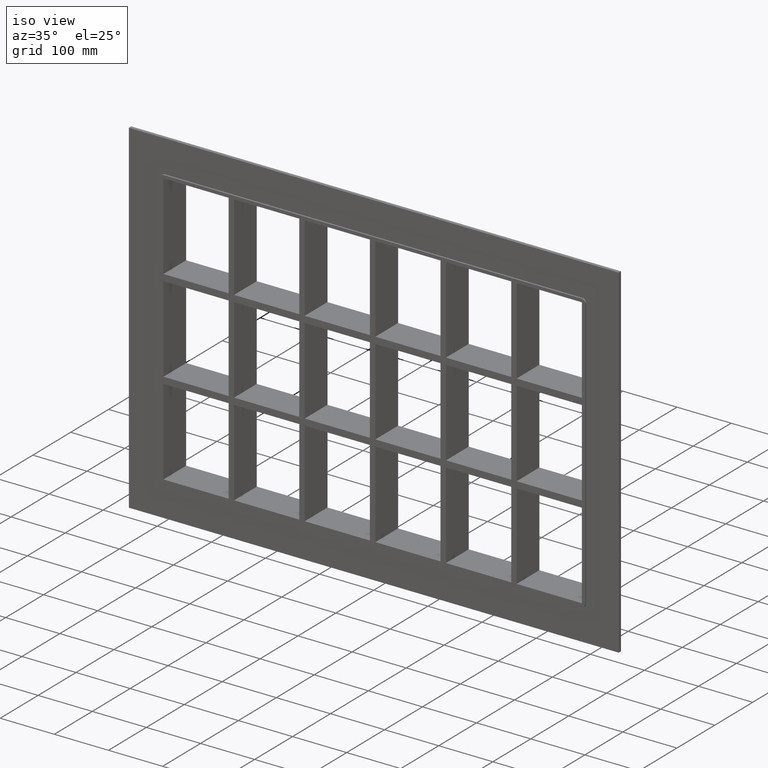
[diagram: clean part render]
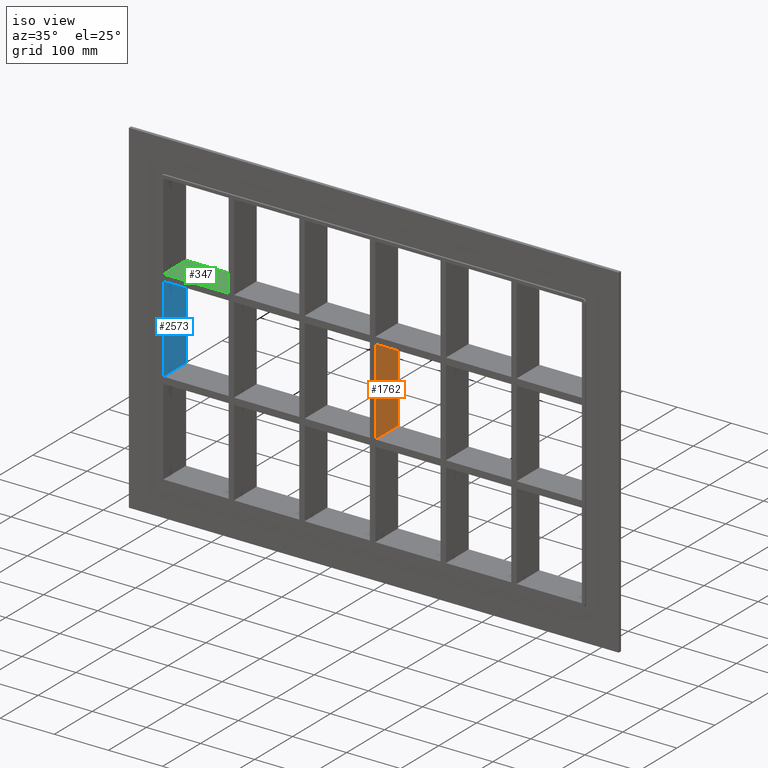
[diagram: same view with three faces highlighted in distinct colors, each labeled with its STEP entity id]
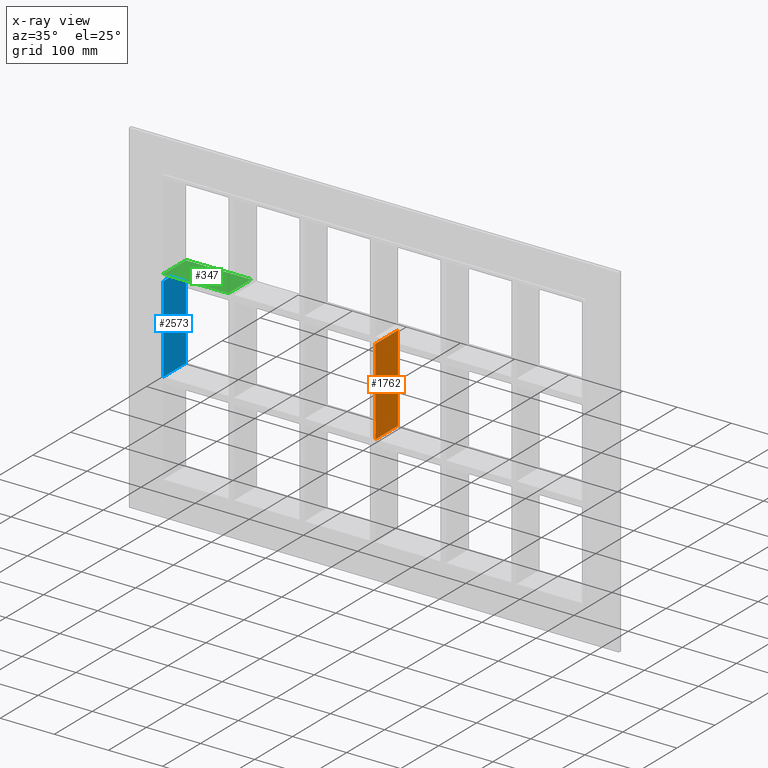
[diagram: x-ray of the same camera — body ghosted, the three highlighted faces saturated]
A machine part, iso view with three faces highlighted in distinct colors.
The next image is the same camera in x-ray (body ghosted, the three faces saturated) — at least one of them is partly hidden behind the body in this view.
Their STEP definitions:

[orange] entity #1762 — the highlighted planar face has unit normal (1, 0, 0).
#203=CARTESIAN_POINT('',(4.999999999996376,-3.0,79.749999999990663));
#204=VERTEX_POINT('',#203);
#211=CARTESIAN_POINT('',(4.999999999996376,57.0,79.749999999990663));
#212=VERTEX_POINT('',#211);
#213=CARTESIAN_POINT('',(4.999999999996376,57.0,79.749999999990649));
#214=DIRECTION('',(0.0,-1.0,0.0));
#215=VECTOR('',#214,60.0);
#216=LINE('',#213,#215);
#217=EDGE_CURVE('',#212,#204,#216,.T.);
#1174=CARTESIAN_POINT('',(4.999999999996376,57.0,-79.749999999999943));
#1175=VERTEX_POINT('',#1174);
#1176=CARTESIAN_POINT('',(4.999999999996376,57.0,79.749999999990678));
#1177=DIRECTION('',(0.0,0.0,-1.0));
#1178=VECTOR('',#1177,159.49999999999062);
#1179=LINE('',#1176,#1178);
#1180=EDGE_CURVE('',#212,#1175,#1179,.T.);
#1739=CARTESIAN_POINT('',(4.999999999996376,-3.0,251.25));
#1740=DIRECTION('',(1.0,0.0,0.0));
#1741=DIRECTION('',(0.0,0.0,-1.0));
#1742=AXIS2_PLACEMENT_3D('',#1739,#1740,#1741);
#1743=PLANE('',#1742);
#1744=ORIENTED_EDGE('',*,*,#217,.T.);
#1745=CARTESIAN_POINT('',(4.999999999996376,-3.0,-79.749999999999943));
#1746=VERTEX_POINT('',#1745);
#1747=CARTESIAN_POINT('',(4.999999999996376,-3.0,79.749999999990678));
#1748=DIRECTION('',(0.0,0.0,-1.0));
#1749=VECTOR('',#1748,159.49999999999062);
#1750=LINE('',#1747,#1749);
#1751=EDGE_CURVE('',#204,#1746,#1750,.T.);
#1752=ORIENTED_EDGE('',*,*,#1751,.T.);
#1753=CARTESIAN_POINT('',(4.999999999996376,57.0,-79.749999999999943));
#1754=DIRECTION('',(0.0,-1.0,0.0));
#1755=VECTOR('',#1754,60.0);
#1756=LINE('',#1753,#1755);
#1757=EDGE_CURVE('',#1175,#1746,#1756,.T.);
#1758=ORIENTED_EDGE('',*,*,#1757,.F.);
#1759=ORIENTED_EDGE('',*,*,#1180,.F.);
#1760=EDGE_LOOP('',(#1744,#1752,#1758,#1759));
#1761=FACE_OUTER_BOUND('',#1760,.T.);
#1762=ADVANCED_FACE('',(#1761),#1743,.T.);

[blue] entity #2573 — the highlighted planar face has unit normal (-1, 0, 0).
#83=CARTESIAN_POINT('',(-386.49999999999977,-3.0,79.749999999990536));
#84=VERTEX_POINT('',#83);
#91=CARTESIAN_POINT('',(-386.49999999999977,57.0,79.749999999990536));
#92=VERTEX_POINT('',#91);
#93=CARTESIAN_POINT('',(-386.5,57.000000000000007,79.749999999990507));
#94=DIRECTION('',(0.0,-1.0,0.0));
#95=VECTOR('',#94,60.000000000000007);
#96=LINE('',#93,#95);
#97=EDGE_CURVE('',#92,#84,#96,.T.);
#1057=CARTESIAN_POINT('',(-386.49999999999977,57.0,-79.749999999999943));
#1058=VERTEX_POINT('',#1057);
#1059=CARTESIAN_POINT('',(-386.5,57.0,79.749999999990536));
#1060=DIRECTION('',(0.0,0.0,-1.0));
#1061=VECTOR('',#1060,159.49999999999048);
#1062=LINE('',#1059,#1061);
#1063=EDGE_CURVE('',#92,#1058,#1062,.T.);
#2197=CARTESIAN_POINT('',(-386.49999999999977,-3.0,-79.749999999999943));
#2198=VERTEX_POINT('',#2197);
#2205=CARTESIAN_POINT('',(-386.5,-3.0,-79.749999999999943));
#2206=DIRECTION('',(0.0,0.0,1.0));
#2207=VECTOR('',#2206,159.49999999999048);
#2208=LINE('',#2205,#2207);
#2209=EDGE_CURVE('',#2198,#84,#2208,.T.);
#2552=CARTESIAN_POINT('',(-386.5,-3.0,-79.749999999999943));
#2553=DIRECTION('',(0.0,1.0,0.0));
#2554=VECTOR('',#2553,60.000000000000007);
#2555=LINE('',#2552,#2554);
#2556=EDGE_CURVE('',#2198,#1058,#2555,.T.);
#2562=CARTESIAN_POINT('',(-386.5,0.0,-251.25));
#2563=DIRECTION('',(-1.0,0.0,0.0));
#2564=DIRECTION('',(0.0,0.0,1.0));
#2565=AXIS2_PLACEMENT_3D('',#2562,#2563,#2564);
#2566=PLANE('',#2565);
#2567=ORIENTED_EDGE('',*,*,#97,.T.);
#2568=ORIENTED_EDGE('',*,*,#2209,.F.);
#2569=ORIENTED_EDGE('',*,*,#2556,.T.);
#2570=ORIENTED_EDGE('',*,*,#1063,.F.);
#2571=EDGE_LOOP('',(#2567,#2568,#2569,#2570));
#2572=FACE_OUTER_BOUND('',#2571,.T.);
#2573=ADVANCED_FACE('',(#2572),#2566,.F.);

[green] entity #347 — the highlighted planar face has unit normal (0, 0, 1).
#308=CARTESIAN_POINT('',(-386.49999999999977,-3.0,91.750000000000085));
#309=DIRECTION('',(0.0,0.0,1.0));
#310=DIRECTION('',(1.0,0.0,0.0));
#311=AXIS2_PLACEMENT_3D('',#308,#309,#310);
#312=PLANE('',#311);
#313=CARTESIAN_POINT('',(-266.00000000000142,57.0,91.750000000000114));
#314=VERTEX_POINT('',#313);
#315=CARTESIAN_POINT('',(-266.00000000000142,-3.0,91.750000000000114));
#316=VERTEX_POINT('',#315);
#317=CARTESIAN_POINT('',(-266.00000000000142,57.0,91.750000000000099));
#318=DIRECTION('',(0.0,-1.0,0.0));
#319=VECTOR('',#318,60.0);
#320=LINE('',#317,#319);
#321=EDGE_CURVE('',#314,#316,#320,.T.);
#322=ORIENTED_EDGE('',*,*,#321,.F.);
#323=CARTESIAN_POINT('',(-386.49999999999977,57.0,91.750000000000085));
#324=VERTEX_POINT('',#323);
#325=CARTESIAN_POINT('',(-386.49999999999977,57.0,91.750000000000085));
#326=DIRECTION('',(1.0,0.0,0.0));
#327=VECTOR('',#326,120.49999999999841);
#328=LINE('',#325,#327);
#329=EDGE_CURVE('',#324,#314,#328,.T.);
#330=ORIENTED_EDGE('',*,*,#329,.F.);
#331=CARTESIAN_POINT('',(-386.49999999999977,-3.0,91.750000000000085));
#332=VERTEX_POINT('',#331);
#333=CARTESIAN_POINT('',(-386.5,-3.0,91.750000000000099));
#334=DIRECTION('',(0.0,1.0,0.0));
#335=VECTOR('',#334,60.000000000000007);
#336=LINE('',#333,#335);
#337=EDGE_CURVE('',#332,#324,#336,.T.);
#338=ORIENTED_EDGE('',*,*,#337,.F.);
#339=CARTESIAN_POINT('',(-386.49999999999977,-3.0,91.750000000000085));
#340=DIRECTION('',(1.0,0.0,0.0));
#341=VECTOR('',#340,120.49999999999841);
#342=LINE('',#339,#341);
#343=EDGE_CURVE('',#332,#316,#342,.T.);
#344=ORIENTED_EDGE('',*,*,#343,.T.);
#345=EDGE_LOOP('',(#322,#330,#338,#344));
#346=FACE_OUTER_BOUND('',#345,.T.);
#347=ADVANCED_FACE('',(#346),#312,.T.);